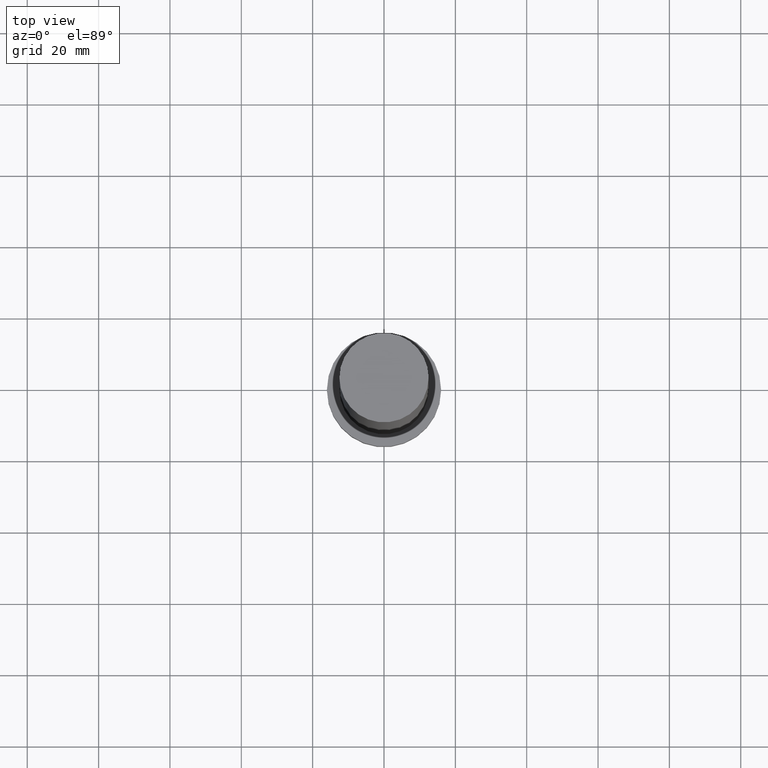
[diagram: clean part render]
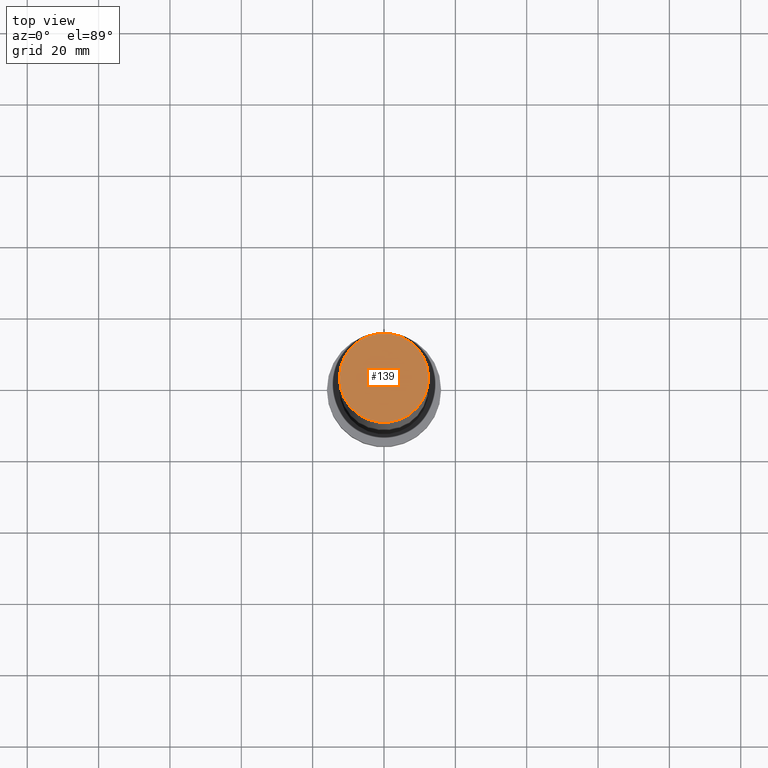
[diagram: same view with one face highlighted and labeled with its STEP entity id]
A machine part, top view. The second image highlights one B-rep face of the part: STEP entity #139.
In plain terms, the highlighted planar face has unit normal (0, 0, 1).
Its self-contained STEP definition (entity closure, byte-faithful):
#11 = CARTESIAN_POINT ( 'NONE',  ( 12.50000000000000000, 1.530808498934191521E-15, 200.0000000000000000 ) ) ;
#12 = CIRCLE ( 'NONE', #185, 12.50000000000000000 ) ;
#23 = AXIS2_PLACEMENT_3D ( 'NONE', #44, #115, #247 ) ;
#30 = EDGE_CURVE ( 'NONE', #123, #64, #12, .T. ) ;
#44 = CARTESIAN_POINT ( 'NONE',  ( 0.000000000000000000, 0.000000000000000000, 200.0000000000000000 ) ) ;
#50 = CARTESIAN_POINT ( 'NONE',  ( 0.000000000000000000, 0.000000000000000000, 200.0000000000000000 ) ) ;
#52 = CARTESIAN_POINT ( 'NONE',  ( 0.000000000000000000, 0.000000000000000000, 200.0000000000000000 ) ) ;
#64 = VERTEX_POINT ( 'NONE', #238 ) ;
#75 = PLANE ( 'NONE',  #23 ) ;
#86 = EDGE_LOOP ( 'NONE', ( #222, #214 ) ) ;
#115 = DIRECTION ( 'NONE',  ( 0.000000000000000000, 0.000000000000000000, 1.000000000000000000 ) ) ;
#118 = DIRECTION ( 'NONE',  ( 1.000000000000000000, 0.000000000000000000, 0.000000000000000000 ) ) ;
#122 = AXIS2_PLACEMENT_3D ( 'NONE', #52, #125, #160 ) ;
#123 = VERTEX_POINT ( 'NONE', #11 ) ;
#125 = DIRECTION ( 'NONE',  ( 0.000000000000000000, 0.000000000000000000, 1.000000000000000000 ) ) ;
#139 = ADVANCED_FACE ( 'NONE', ( #175 ), #75, .T. ) ;
#142 = EDGE_CURVE ( 'NONE', #64, #123, #235, .T. ) ;
#160 = DIRECTION ( 'NONE',  ( 1.000000000000000000, 0.000000000000000000, 0.000000000000000000 ) ) ;
#175 = FACE_OUTER_BOUND ( 'NONE', #86, .T. ) ;
#185 = AXIS2_PLACEMENT_3D ( 'NONE', #50, #206, #118 ) ;
#206 = DIRECTION ( 'NONE',  ( 0.000000000000000000, 0.000000000000000000, 1.000000000000000000 ) ) ;
#214 = ORIENTED_EDGE ( 'NONE', *, *, #30, .T. ) ;
#222 = ORIENTED_EDGE ( 'NONE', *, *, #142, .T. ) ;
#235 = CIRCLE ( 'NONE', #122, 12.50000000000000000 ) ;
#238 = CARTESIAN_POINT ( 'NONE',  ( -12.50000000000000000, 0.000000000000000000, 200.0000000000000000 ) ) ;
#247 = DIRECTION ( 'NONE',  ( 1.000000000000000000, 0.000000000000000000, -0.000000000000000000 ) ) ;